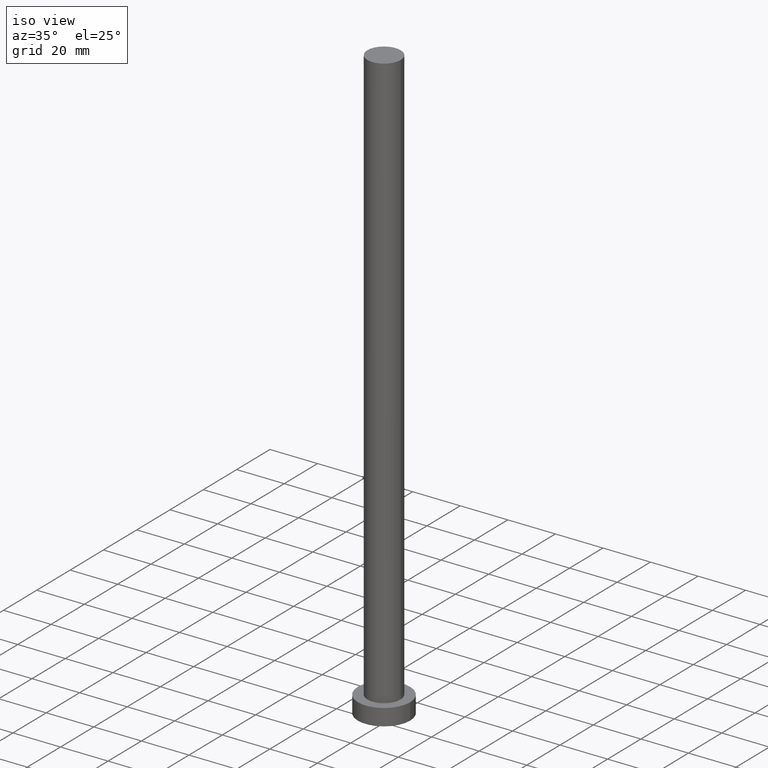
[diagram: clean part render]
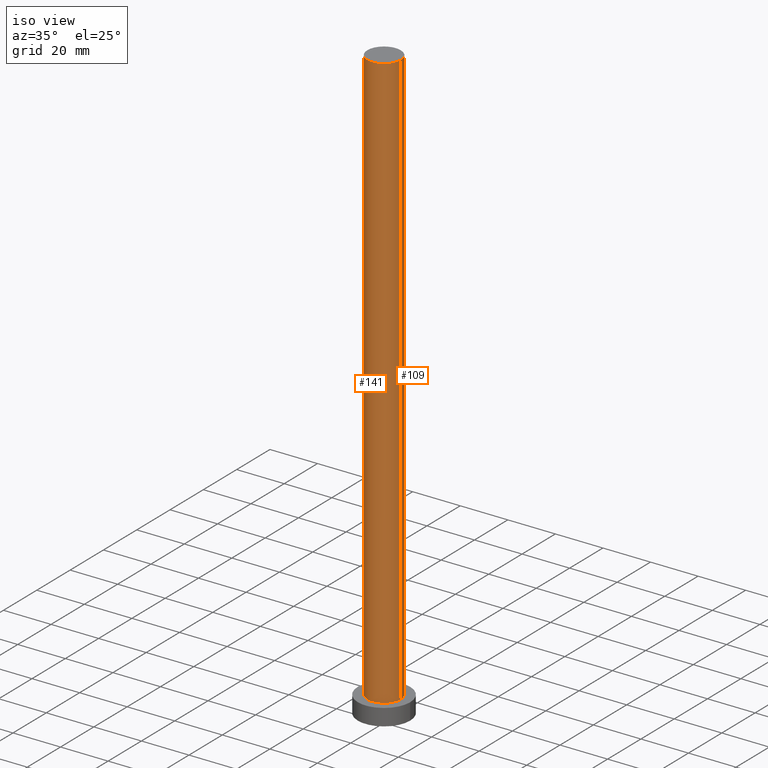
[diagram: same view with one multi-face feature highlighted, each face labeled with its STEP entity id]
A machine part, iso view. The highlighted faces form ONE feature: a constant-radius fillet chain: 2 tangent blend faces with common blend radius 7 mm. The faces share edges in the B-rep.
Their STEP definitions:
[1] entity #109 (Cylinder):
#4 = ORIENTED_EDGE ( 'NONE', *, *, #45, .T. ) ;
#6 = VECTOR ( 'NONE', #239, 1000.000000000000000 ) ;
#19 = AXIS2_PLACEMENT_3D ( 'NONE', #47, #25, #179 ) ;
#20 = VERTEX_POINT ( 'NONE', #29 ) ;
#21 = VECTOR ( 'NONE', #238, 1000.000000000000000 ) ;
#25 = DIRECTION ( 'NONE',  ( -0.000000000000000000, -0.000000000000000000, -1.000000000000000000 ) ) ;
#29 = CARTESIAN_POINT ( 'NONE',  ( -7.000000000000000888, 0.000000000000000000, 250.0000000000000000 ) ) ;
#30 = CARTESIAN_POINT ( 'NONE',  ( -7.000000000000000888, 0.000000000000000000, 250.0000000000000000 ) ) ;
#40 = EDGE_LOOP ( 'NONE', ( #160, #4, #114, #102 ) ) ;
#45 = EDGE_CURVE ( 'NONE', #117, #95, #81, .T. ) ;
#47 = CARTESIAN_POINT ( 'NONE',  ( 0.000000000000000000, 0.000000000000000000, 250.0000000000000000 ) ) ;
#59 = CARTESIAN_POINT ( 'NONE',  ( 0.000000000000000000, 0.000000000000000000, 7.000000000000000000 ) ) ;
#60 = CIRCLE ( 'NONE', #230, 7.000000000000000888 ) ;
#64 = CARTESIAN_POINT ( 'NONE',  ( 7.000000000000000888, 8.572527594031474176E-16, 250.0000000000000000 ) ) ;
#68 = DIRECTION ( 'NONE',  ( 0.000000000000000000, 0.000000000000000000, 1.000000000000000000 ) ) ;
#81 = LINE ( 'NONE', #64, #21 ) ;
#92 = EDGE_CURVE ( 'NONE', #20, #177, #142, .T. ) ;
#95 = VERTEX_POINT ( 'NONE', #106 ) ;
#102 = ORIENTED_EDGE ( 'NONE', *, *, #92, .F. ) ;
#104 = CARTESIAN_POINT ( 'NONE',  ( 7.000000000000000888, 8.572527594031474176E-16, 250.0000000000000000 ) ) ;
#106 = CARTESIAN_POINT ( 'NONE',  ( 7.000000000000000888, 8.572527594031474176E-16, 7.000000000000000000 ) ) ;
#109 = ADVANCED_FACE ( 'NONE', ( #119 ), #144, .T. ) ;
#114 = ORIENTED_EDGE ( 'NONE', *, *, #217, .T. ) ;
#117 = VERTEX_POINT ( 'NONE', #104 ) ;
#119 = FACE_OUTER_BOUND ( 'NONE', #40, .T. ) ;
#120 = AXIS2_PLACEMENT_3D ( 'NONE', #59, #171, #131 ) ;
#131 = DIRECTION ( 'NONE',  ( 1.000000000000000000, 0.000000000000000000, 0.000000000000000000 ) ) ;
#142 = LINE ( 'NONE', #30, #6 ) ;
#144 = CYLINDRICAL_SURFACE ( 'NONE', #19, 7.000000000000000888 ) ;
#159 = EDGE_CURVE ( 'NONE', #117, #20, #60, .T. ) ;
#160 = ORIENTED_EDGE ( 'NONE', *, *, #159, .F. ) ;
#171 = DIRECTION ( 'NONE',  ( 0.000000000000000000, 0.000000000000000000, 1.000000000000000000 ) ) ;
#177 = VERTEX_POINT ( 'NONE', #220 ) ;
#179 = DIRECTION ( 'NONE',  ( -1.000000000000000000, 0.000000000000000000, 0.000000000000000000 ) ) ;
#213 = CIRCLE ( 'NONE', #120, 7.000000000000000888 ) ;
#217 = EDGE_CURVE ( 'NONE', #95, #177, #213, .T. ) ;
#220 = CARTESIAN_POINT ( 'NONE',  ( -7.000000000000000888, 0.000000000000000000, 7.000000000000000000 ) ) ;
#221 = DIRECTION ( 'NONE',  ( 1.000000000000000000, 0.000000000000000000, 0.000000000000000000 ) ) ;
#230 = AXIS2_PLACEMENT_3D ( 'NONE', #240, #68, #221 ) ;
#238 = DIRECTION ( 'NONE',  ( -0.000000000000000000, -0.000000000000000000, -1.000000000000000000 ) ) ;
#239 = DIRECTION ( 'NONE',  ( -0.000000000000000000, -0.000000000000000000, -1.000000000000000000 ) ) ;
#240 = CARTESIAN_POINT ( 'NONE',  ( 0.000000000000000000, 0.000000000000000000, 250.0000000000000000 ) ) ;
[2] entity #141 (Cylinder):
#6 = VECTOR ( 'NONE', #239, 1000.000000000000000 ) ;
#14 = DIRECTION ( 'NONE',  ( 1.000000000000000000, 0.000000000000000000, 0.000000000000000000 ) ) ;
#20 = VERTEX_POINT ( 'NONE', #29 ) ;
#21 = VECTOR ( 'NONE', #238, 1000.000000000000000 ) ;
#24 = AXIS2_PLACEMENT_3D ( 'NONE', #200, #122, #84 ) ;
#26 = DIRECTION ( 'NONE',  ( -0.000000000000000000, -0.000000000000000000, -1.000000000000000000 ) ) ;
#29 = CARTESIAN_POINT ( 'NONE',  ( -7.000000000000000888, 0.000000000000000000, 250.0000000000000000 ) ) ;
#30 = CARTESIAN_POINT ( 'NONE',  ( -7.000000000000000888, 0.000000000000000000, 250.0000000000000000 ) ) ;
#41 = AXIS2_PLACEMENT_3D ( 'NONE', #112, #245, #14 ) ;
#44 = ORIENTED_EDGE ( 'NONE', *, *, #92, .T. ) ;
#45 = EDGE_CURVE ( 'NONE', #117, #95, #81, .T. ) ;
#62 = ORIENTED_EDGE ( 'NONE', *, *, #202, .F. ) ;
#64 = CARTESIAN_POINT ( 'NONE',  ( 7.000000000000000888, 8.572527594031474176E-16, 250.0000000000000000 ) ) ;
#69 = ORIENTED_EDGE ( 'NONE', *, *, #45, .F. ) ;
#81 = LINE ( 'NONE', #64, #21 ) ;
#83 = CIRCLE ( 'NONE', #41, 7.000000000000000888 ) ;
#84 = DIRECTION ( 'NONE',  ( 1.000000000000000000, 0.000000000000000000, 0.000000000000000000 ) ) ;
#92 = EDGE_CURVE ( 'NONE', #20, #177, #142, .T. ) ;
#95 = VERTEX_POINT ( 'NONE', #106 ) ;
#97 = EDGE_CURVE ( 'NONE', #177, #95, #128, .T. ) ;
#103 = FACE_OUTER_BOUND ( 'NONE', #140, .T. ) ;
#104 = CARTESIAN_POINT ( 'NONE',  ( 7.000000000000000888, 8.572527594031474176E-16, 250.0000000000000000 ) ) ;
#106 = CARTESIAN_POINT ( 'NONE',  ( 7.000000000000000888, 8.572527594031474176E-16, 7.000000000000000000 ) ) ;
#112 = CARTESIAN_POINT ( 'NONE',  ( 0.000000000000000000, 0.000000000000000000, 250.0000000000000000 ) ) ;
#117 = VERTEX_POINT ( 'NONE', #104 ) ;
#121 = CYLINDRICAL_SURFACE ( 'NONE', #168, 7.000000000000000888 ) ;
#122 = DIRECTION ( 'NONE',  ( 0.000000000000000000, 0.000000000000000000, 1.000000000000000000 ) ) ;
#128 = CIRCLE ( 'NONE', #24, 7.000000000000000888 ) ;
#140 = EDGE_LOOP ( 'NONE', ( #69, #62, #44, #232 ) ) ;
#141 = ADVANCED_FACE ( 'NONE', ( #103 ), #121, .T. ) ;
#142 = LINE ( 'NONE', #30, #6 ) ;
#163 = DIRECTION ( 'NONE',  ( -1.000000000000000000, 0.000000000000000000, 0.000000000000000000 ) ) ;
#168 = AXIS2_PLACEMENT_3D ( 'NONE', #197, #26, #163 ) ;
#177 = VERTEX_POINT ( 'NONE', #220 ) ;
#197 = CARTESIAN_POINT ( 'NONE',  ( 0.000000000000000000, 0.000000000000000000, 250.0000000000000000 ) ) ;
#200 = CARTESIAN_POINT ( 'NONE',  ( 0.000000000000000000, 0.000000000000000000, 7.000000000000000000 ) ) ;
#202 = EDGE_CURVE ( 'NONE', #20, #117, #83, .T. ) ;
#220 = CARTESIAN_POINT ( 'NONE',  ( -7.000000000000000888, 0.000000000000000000, 7.000000000000000000 ) ) ;
#232 = ORIENTED_EDGE ( 'NONE', *, *, #97, .T. ) ;
#238 = DIRECTION ( 'NONE',  ( -0.000000000000000000, -0.000000000000000000, -1.000000000000000000 ) ) ;
#239 = DIRECTION ( 'NONE',  ( -0.000000000000000000, -0.000000000000000000, -1.000000000000000000 ) ) ;
#245 = DIRECTION ( 'NONE',  ( 0.000000000000000000, 0.000000000000000000, 1.000000000000000000 ) ) ;